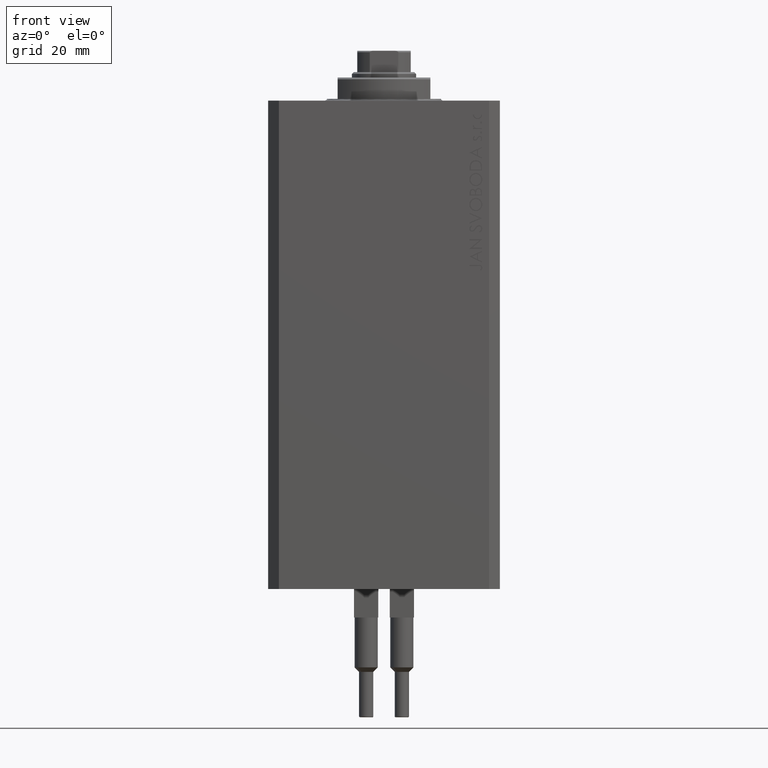
[diagram: clean part render]
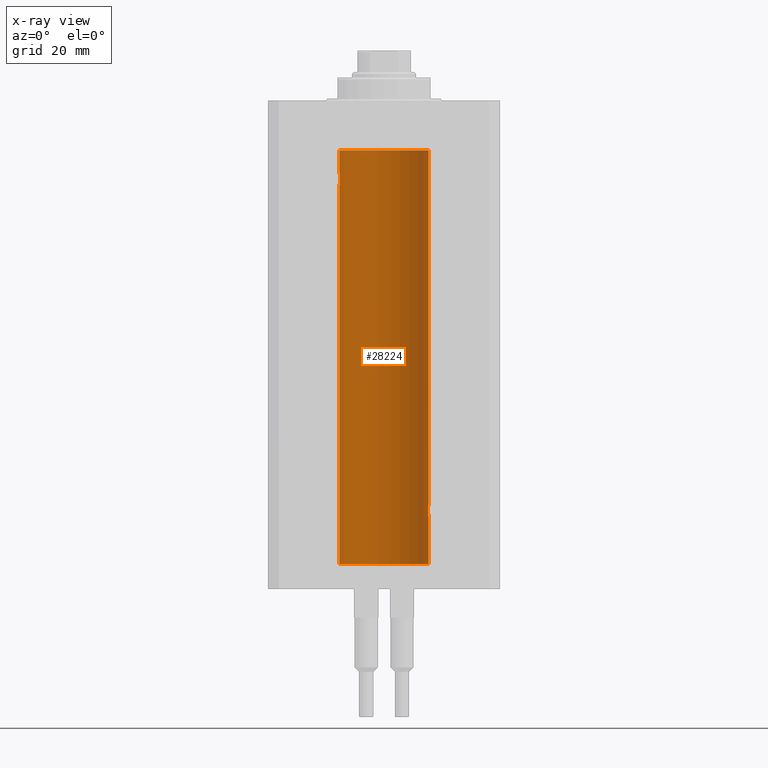
[diagram: x-ray — body ghosted, one internal face saturated and labeled with its STEP entity id]
A machine part, front view, then the same camera in x-ray: the body is ghosted and one INTERNAL B-rep face — a face not visible from any outside direction — is saturated and labeled: STEP entity #28224.
In plain terms, the highlighted cylindrical surface (partial cylindrical patch) has radius 12.5 mm, axis along (0, 0, 1).
Its self-contained STEP definition (entity closure, byte-faithful):
#249 = DIRECTION ( 'NONE',  ( 0.000000000000000000, 0.000000000000000000, 1.000000000000000000 ) ) ;
#426 = ORIENTED_EDGE ( 'NONE', *, *, #21035, .T. ) ;
#564 = CARTESIAN_POINT ( 'NONE',  ( 12.43037348241797524, 1.320834183883837554, -113.4924383770429728 ) ) ;
#1989 = CARTESIAN_POINT ( 'NONE',  ( 12.46019522898365217, 1.002712894177336223, -116.7354089602759899 ) ) ;
#2061 = CARTESIAN_POINT ( 'NONE',  ( -12.48394649977302073, 0.6448065707253024526, -23.89773031393659153 ) ) ;
#2296 = CARTESIAN_POINT ( 'NONE',  ( -12.43019346654084956, 1.322451657002078340, -20.49398366327208620 ) ) ;
#2528 = CARTESIAN_POINT ( 'NONE',  ( -12.34922241902463114, 1.935814255713574239, -22.51937350851555308 ) ) ;
#2563 = VERTEX_POINT ( 'NONE', #8032 ) ;
#3723 = CARTESIAN_POINT ( 'NONE',  ( 12.39867611624532806, 1.590019252152828910, -113.7798449592961276 ) ) ;
#5671 = EDGE_CURVE ( 'NONE', #19537, #2563, #18908, .T. ) ;
#5915 = AXIS2_PLACEMENT_3D ( 'NONE', #32690, #6458, #35603 ) ;
#6171 = CARTESIAN_POINT ( 'NONE',  ( -12.34781876294798053, 1.947190906025043633, -21.47436412829509678 ) ) ;
#6408 = CARTESIAN_POINT ( 'NONE',  ( -12.43034574091277911, 1.321095788880539024, -23.50733550364322255 ) ) ;
#6458 = DIRECTION ( 'NONE',  ( -0.000000000000000000, -0.000000000000000000, 1.000000000000000000 ) ) ;
#6644 = CARTESIAN_POINT ( 'NONE',  ( 12.50000000000000000, 0.000000000000000000, -13.99999999999999822 ) ) ;
#6975 = CARTESIAN_POINT ( 'NONE',  ( 12.50000000000000000, 2.320363022323678888E-15, -117.0000000000000142 ) ) ;
#7366 = CARTESIAN_POINT ( 'NONE',  ( 12.34110728646152388, 1.986893050944454453, -114.7366134776498541 ) ) ;
#7503 = LINE ( 'NONE', #18675, #30411 ) ;
#7940 = VERTEX_POINT ( 'NONE', #6975 ) ;
#8032 = CARTESIAN_POINT ( 'NONE',  ( -12.50000000000000000, 1.530808426276628993E-15, -23.99999999999999645 ) ) ;
#8087 = CARTESIAN_POINT ( 'NONE',  ( 12.50000000000000000, -7.266276684081261841E-23, -113.0000000000000142 ) ) ;
#8803 = DIRECTION ( 'NONE',  ( -0.000000000000000000, -0.000000000000000000, 1.000000000000000000 ) ) ;
#9114 = CARTESIAN_POINT ( 'NONE',  ( -12.35517291625592051, 1.897967064543089721, -22.64415233770293412 ) ) ;
#9342 = CARTESIAN_POINT ( 'NONE',  ( -12.48990118705761532, 0.5184196815546056047, -20.06395648222637007 ) ) ;
#9509 = EDGE_CURVE ( 'NONE', #7940, #24098, #11056, .T. ) ;
#9976 = CARTESIAN_POINT ( 'NONE',  ( 12.39869754437268590, 1.598954131913722820, -116.2293215281301286 ) ) ;
#10855 = VECTOR ( 'NONE', #8803, 1000.000000000000000 ) ;
#11056 = B_SPLINE_CURVE_WITH_KNOTS ( 'NONE', 3,
 ( #46180, #35944, #24088, #16562, #35237, #27732, #1989, #28674, #27969, #9976, #24323, #28207, #32076, #17035 ),
 .UNSPECIFIED., .F., .F.,
 ( 4, 2, 2, 2, 2, 2, 4 ),
 ( 2.254408494944823136E-18, 0.0003915305205218102386, 0.0007830610410436180920, 0.001174591561565426108, 0.001566122082087234016, 0.002349183123130850048, 0.003132244164174466730 ),
 .UNSPECIFIED. ) ;
#11243 = CARTESIAN_POINT ( 'NONE',  ( 12.46910683544638232, 0.8866026273585037032, -113.2024786368969700 ) ) ;
#11728 = CARTESIAN_POINT ( 'NONE',  ( 12.49788668346399945, 0.2632864803365707607, -113.0130897583833587 ) ) ;
#11944 = ORIENTED_EDGE ( 'NONE', *, *, #9509, .T. ) ;
#12919 = CARTESIAN_POINT ( 'NONE',  ( -12.50000000000000000, 1.530808498934191521E-15, -130.0999999999999943 ) ) ;
#12982 = CARTESIAN_POINT ( 'NONE',  ( -12.48390768591463207, 0.6455696738844916016, -20.10252270298193977 ) ) ;
#13677 = AXIS2_PLACEMENT_3D ( 'NONE', #27214, #249, #45164 ) ;
#13698 = CARTESIAN_POINT ( 'NONE',  ( -12.50000000000000533, 0.1306394121199390135, -24.00000000000000711 ) ) ;
#13825 = EDGE_CURVE ( 'NONE', #18769, #47972, #7503, .T. ) ;
#14830 = DIRECTION ( 'NONE',  ( 1.000000000000000000, 0.000000000000000000, 0.000000000000000000 ) ) ;
#16410 = CARTESIAN_POINT ( 'NONE',  ( -12.39864157855465088, 1.590288205413973532, -23.21980790594580313 ) ) ;
#16562 = CARTESIAN_POINT ( 'NONE',  ( 12.48989642018887736, 0.5185418732824252919, -116.9360129218760846 ) ) ;
#16638 = CARTESIAN_POINT ( 'NONE',  ( -12.44082361696003503, 1.219754986802281449, -20.40963319990594016 ) ) ;
#16880 = CARTESIAN_POINT ( 'NONE',  ( -12.49788564268284041, 0.2633501011236127343, -23.98690384766255335 ) ) ;
#17035 = CARTESIAN_POINT ( 'NONE',  ( 12.33896267925302759, 2.000000000000247802, -115.0000000000000142 ) ) ;
#17344 = CARTESIAN_POINT ( 'NONE',  ( -12.48983485452574982, 0.5201193324741355539, -23.93561774521849372 ) ) ;
#17755 = CARTESIAN_POINT ( 'NONE',  ( 0.000000000000000000, 0.000000000000000000, -130.0999999999999943 ) ) ;
#18168 = ORIENTED_EDGE ( 'NONE', *, *, #5671, .F. ) ;
#18532 = CARTESIAN_POINT ( 'NONE',  ( 12.35520276972935427, 1.897773362058238877, -114.3552827863433947 ) ) ;
#18675 = CARTESIAN_POINT ( 'NONE',  ( 12.50000000000000000, 0.000000000000000000, -130.0999999999999943 ) ) ;
#18769 = VERTEX_POINT ( 'NONE', #31261 ) ;
#18908 = LINE ( 'NONE', #33719, #47373 ) ;
#19342 = B_SPLINE_CURVE_WITH_KNOTS ( 'NONE', 3,
 ( #40626, #26305, #7366, #36982, #18532, #30429, #33339, #3723, #33581, #564, #41351, #44507, #11243, #40870, #41111, #11728, #45236, #8087 ),
 .UNSPECIFIED., .F., .F.,
 ( 4, 2, 2, 2, 2, 2, 2, 2, 4 ),
 ( 0.003132244164174466730, 0.003523586189974241625, 0.003914928215774016521, 0.004306270241573791416, 0.004697612267373566311, 0.005088954293173341206, 0.005480296318973116101, 0.005871638344772890997, 0.006262980370572665892 ),
 .UNSPECIFIED. ) ;
#19537 = VERTEX_POINT ( 'NONE', #12919 ) ;
#20282 = CARTESIAN_POINT ( 'NONE',  ( -12.37922086519035325, 1.734998657226764829, -23.00335814299181436 ) ) ;
#20315 = ORIENTED_EDGE ( 'NONE', *, *, #41801, .T. ) ;
#20928 = CARTESIAN_POINT ( 'NONE',  ( -12.50000000000000000, 1.867773856434666690E-17, -20.00000000000000000 ) ) ;
#20990 = CARTESIAN_POINT ( 'NONE',  ( -12.33895470450623044, 2.000049200055401766, -22.12992629360264729 ) ) ;
#21035 = EDGE_CURVE ( 'NONE', #23506, #7940, #31924, .T. ) ;
#23506 = VERTEX_POINT ( 'NONE', #38794 ) ;
#24088 = CARTESIAN_POINT ( 'NONE',  ( 12.49789833780794446, 0.2625555164371021766, -116.9869817082214922 ) ) ;
#24098 = VERTEX_POINT ( 'NONE', #47378 ) ;
#24137 = VERTEX_POINT ( 'NONE', #20928 ) ;
#24164 = CARTESIAN_POINT ( 'NONE',  ( -12.37764291807175354, 1.747608771958140794, -20.99316879552500481 ) ) ;
#24323 = CARTESIAN_POINT ( 'NONE',  ( 12.37760587642916477, 1.747868572747719229, -116.0063965316900152 ) ) ;
#24635 = CARTESIAN_POINT ( 'NONE',  ( -12.49789934882883458, 0.2624928479599910047, -20.01301208516349917 ) ) ;
#25154 = FACE_OUTER_BOUND ( 'NONE', #26531, .T. ) ;
#25643 = CYLINDRICAL_SURFACE ( 'NONE', #5915, 12.50000000000000000 ) ;
#26305 = CARTESIAN_POINT ( 'NONE',  ( 12.33896267925302581, 2.000000000000247358, -114.8693470594992334 ) ) ;
#26358 = ORIENTED_EDGE ( 'NONE', *, *, #27768, .T. ) ;
#26531 = EDGE_LOOP ( 'NONE', ( #18168, #32508, #426, #11944, #30530, #37982, #26358, #27859, #20315 ) ) ;
#26693 = DIRECTION ( 'NONE',  ( -0.000000000000000000, -0.000000000000000000, 1.000000000000000000 ) ) ;
#27143 = EDGE_CURVE ( 'NONE', #23506, #19537, #29935, .T. ) ;
#27214 = CARTESIAN_POINT ( 'NONE',  ( 0.000000000000000000, 0.000000000000000000, -13.99999999999999822 ) ) ;
#27732 = CARTESIAN_POINT ( 'NONE',  ( 12.46901623405144122, 0.8878913781257877780, -116.7968965171755258 ) ) ;
#27768 = EDGE_CURVE ( 'NONE', #47972, #33447, #39262, .T. ) ;
#27808 = CARTESIAN_POINT ( 'NONE',  ( -12.44076681548080288, 1.220297236145718944, -23.58991408680628155 ) ) ;
#27859 = ORIENTED_EDGE ( 'NONE', *, *, #41234, .F. ) ;
#27969 = CARTESIAN_POINT ( 'NONE',  ( 12.43016561391612917, 1.322713721413880661, -116.5057887783670196 ) ) ;
#28207 = CARTESIAN_POINT ( 'NONE',  ( 12.34779119491631683, 1.947363444907009633, -115.5250277516825861 ) ) ;
#28224 = ADVANCED_FACE ( 'NONE', ( #25154 ), #25643, .F. ) ;
#28515 = CARTESIAN_POINT ( 'NONE',  ( -12.40913174964213184, 1.507394620545641439, -23.32102833500698225 ) ) ;
#28674 = CARTESIAN_POINT ( 'NONE',  ( 12.44079900692650931, 1.220007525301739282, -116.5901757908366534 ) ) ;
#29687 = EDGE_CURVE ( 'NONE', #24098, #18769, #19342, .T. ) ;
#29935 = CIRCLE ( 'NONE', #46984, 12.50000000000000000 ) ;
#30411 = VECTOR ( 'NONE', #38813, 1000.000000000000000 ) ;
#30429 = CARTESIAN_POINT ( 'NONE',  ( 12.37021546997940291, 1.797317011867403114, -114.1129511974108510 ) ) ;
#30530 = ORIENTED_EDGE ( 'NONE', *, *, #29687, .T. ) ;
#31261 = CARTESIAN_POINT ( 'NONE',  ( 12.50000000000000000, -7.266276684081261841E-23, -113.0000000000000142 ) ) ;
#31609 = LINE ( 'NONE', #42304, #10855 ) ;
#31914 = CARTESIAN_POINT ( 'NONE',  ( -12.39873273758732175, 1.598680238462371062, -20.77033506126851137 ) ) ;
#31924 = LINE ( 'NONE', #42854, #43033 ) ;
#32076 = CARTESIAN_POINT ( 'NONE',  ( 12.33896267925302759, 2.000000000000248246, -115.2614317422079040 ) ) ;
#32508 = ORIENTED_EDGE ( 'NONE', *, *, #27143, .F. ) ;
#32690 = CARTESIAN_POINT ( 'NONE',  ( 0.000000000000000000, 0.000000000000000000, -130.0999999999999943 ) ) ;
#33339 = CARTESIAN_POINT ( 'NONE',  ( 12.37925647381943506, 1.734744884174218571, -113.9962073259865321 ) ) ;
#33447 = VERTEX_POINT ( 'NONE', #48038 ) ;
#33581 = CARTESIAN_POINT ( 'NONE',  ( 12.40916530024876430, 1.507117913375715990, -113.6786595504900674 ) ) ;
#33719 = CARTESIAN_POINT ( 'NONE',  ( -12.50000000000000000, 1.530808498934191521E-15, -130.0999999999999943 ) ) ;
#35237 = CARTESIAN_POINT ( 'NONE',  ( 12.48390005916863110, 0.6457215011736527899, -116.8974277155426904 ) ) ;
#35321 = CARTESIAN_POINT ( 'NONE',  ( -12.46909283808506430, 0.8868029758979402155, -23.79742491916155345 ) ) ;
#35550 = CARTESIAN_POINT ( 'NONE',  ( -12.46903010196599304, 0.8876934327478135378, -20.20300788371381984 ) ) ;
#35603 = DIRECTION ( 'NONE',  ( 1.000000000000000000, 0.000000000000000000, 0.000000000000000000 ) ) ;
#35784 = CARTESIAN_POINT ( 'NONE',  ( -12.34109209020652465, 1.986986967296539897, -22.26269462454597914 ) ) ;
#35944 = CARTESIAN_POINT ( 'NONE',  ( 12.50000000000000178, 0.1324055009716466613, -117.0000000000000426 ) ) ;
#36675 = DIRECTION ( 'NONE',  ( 0.000000000000000000, 0.000000000000000000, 1.000000000000000000 ) ) ;
#36982 = CARTESIAN_POINT ( 'NONE',  ( 12.34924836377099844, 1.935649219704934865, -114.4800206212716631 ) ) ;
#37982 = ORIENTED_EDGE ( 'NONE', *, *, #13825, .T. ) ;
#38794 = CARTESIAN_POINT ( 'NONE',  ( 12.50000000000000000, 0.000000000000000000, -130.0999999999999943 ) ) ;
#38813 = DIRECTION ( 'NONE',  ( -0.000000000000000000, -0.000000000000000000, 1.000000000000000000 ) ) ;
#38966 = CARTESIAN_POINT ( 'NONE',  ( -12.46009879577771606, 1.003863686549169465, -23.73470742397611843 ) ) ;
#39205 = CARTESIAN_POINT ( 'NONE',  ( -12.50000000000000000, 1.867773856434666690E-17, -20.00000000000000000 ) ) ;
#39262 = CIRCLE ( 'NONE', #13677, 12.50000000000000000 ) ;
#39677 = CARTESIAN_POINT ( 'NONE',  ( -12.46021263690096958, 1.002494658017156981, -20.26446744561863156 ) ) ;
#40626 = CARTESIAN_POINT ( 'NONE',  ( 12.33896267925302759, 2.000000000000247802, -115.0000000000000142 ) ) ;
#40870 = CARTESIAN_POINT ( 'NONE',  ( 12.48395395845270528, 0.6446573166014707423, -113.1022212421351583 ) ) ;
#41111 = CARTESIAN_POINT ( 'NONE',  ( 12.48983962833819028, 0.5199974825204898288, -113.0643516080801874 ) ) ;
#41234 = EDGE_CURVE ( 'NONE', #24137, #33447, #31609, .T. ) ;
#41351 = CARTESIAN_POINT ( 'NONE',  ( 12.44079117518645639, 1.220047488436368122, -113.4098967633508437 ) ) ;
#41801 = EDGE_CURVE ( 'NONE', #24137, #2563, #43403, .T. ) ;
#42304 = CARTESIAN_POINT ( 'NONE',  ( -12.50000000000000000, 1.530808498934191521E-15, -130.0999999999999943 ) ) ;
#42621 = DIRECTION ( 'NONE',  ( -0.000000000000000000, -0.000000000000000000, 1.000000000000000000 ) ) ;
#42854 = CARTESIAN_POINT ( 'NONE',  ( 12.50000000000000000, 0.000000000000000000, -130.0999999999999943 ) ) ;
#43033 = VECTOR ( 'NONE', #42621, 1000.000000000000000 ) ;
#43314 = CARTESIAN_POINT ( 'NONE',  ( -12.50000000000000000, 1.530808426276628993E-15, -23.99999999999999645 ) ) ;
#43403 = B_SPLINE_CURVE_WITH_KNOTS ( 'NONE', 3,
 ( #39205, #46022, #24635, #9342, #12982, #35550, #39677, #16638, #2296, #31914, #24164, #6171, #46964, #20990, #35784, #2528, #9114, #46490, #20282, #16410, #28515, #6408, #27808, #38966, #35321, #2061, #17344, #16880, #13698, #43314 ),
 .UNSPECIFIED., .F., .F.,
 ( 4, 2, 2, 2, 2, 2, 2, 2, 2, 2, 2, 2, 2, 2, 4 ),
 ( 1.814683826656258666E-20, 0.0003914362731607577369, 0.0007828725463215154739, 0.001174308819482273265, 0.001565745092643030948, 0.002348617638964546530, 0.003131490185286061895, 0.003522926458446825216, 0.003914362731607588103, 0.004305799004768351423, 0.004697235277929114744, 0.005088671551089878065, 0.005480107824250641385, 0.005871544097411404706, 0.006262980370572168026 ),
 .UNSPECIFIED. ) ;
#44507 = CARTESIAN_POINT ( 'NONE',  ( 12.46011632531798874, 1.003644408234883434, -113.2651679968767127 ) ) ;
#45164 = DIRECTION ( 'NONE',  ( 1.000000000000000000, 0.000000000000000000, 0.000000000000000000 ) ) ;
#45236 = CARTESIAN_POINT ( 'NONE',  ( 12.49999999999999822, 0.1306079576516667173, -113.0000000000000284 ) ) ;
#46022 = CARTESIAN_POINT ( 'NONE',  ( -12.50000000000000000, 0.1323736289504353625, -20.00000000000000000 ) ) ;
#46180 = CARTESIAN_POINT ( 'NONE',  ( 12.50000000000000000, 2.320363022323678888E-15, -117.0000000000000142 ) ) ;
#46490 = CARTESIAN_POINT ( 'NONE',  ( -12.37018026341338839, 1.797558627508998086, -22.88656313533016373 ) ) ;
#46964 = CARTESIAN_POINT ( 'NONE',  ( -12.33897869807161385, 1.999901172190678089, -21.73788193668374547 ) ) ;
#46984 = AXIS2_PLACEMENT_3D ( 'NONE', #17755, #36675, #14830 ) ;
#47373 = VECTOR ( 'NONE', #26693, 1000.000000000000000 ) ;
#47378 = CARTESIAN_POINT ( 'NONE',  ( 12.33896267925302759, 2.000000000000247802, -115.0000000000000142 ) ) ;
#47972 = VERTEX_POINT ( 'NONE', #6644 ) ;
#48038 = CARTESIAN_POINT ( 'NONE',  ( -12.50000000000000000, 1.530808498934191521E-15, -13.99999999999999822 ) ) ;